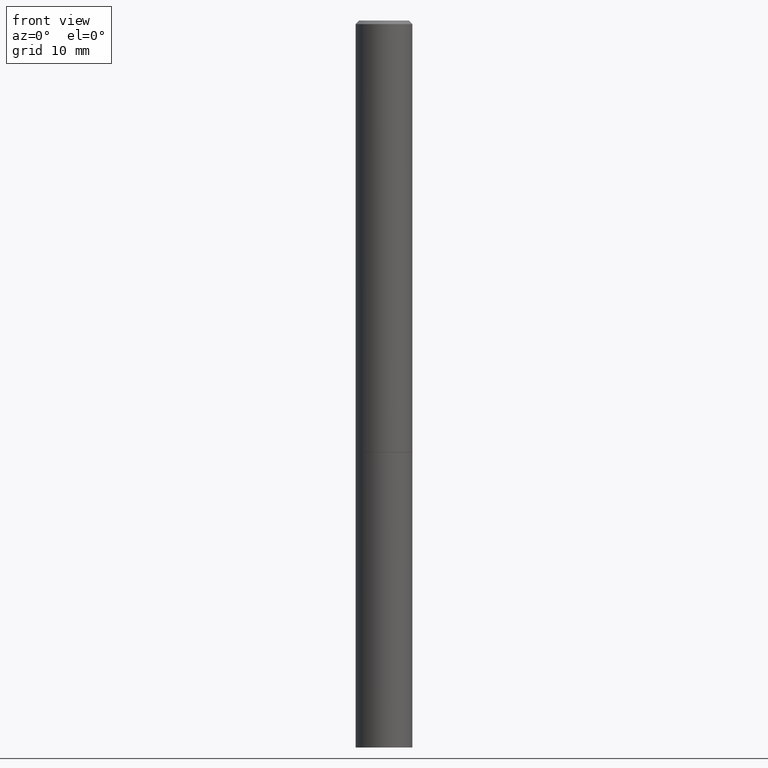
[diagram: clean part render]
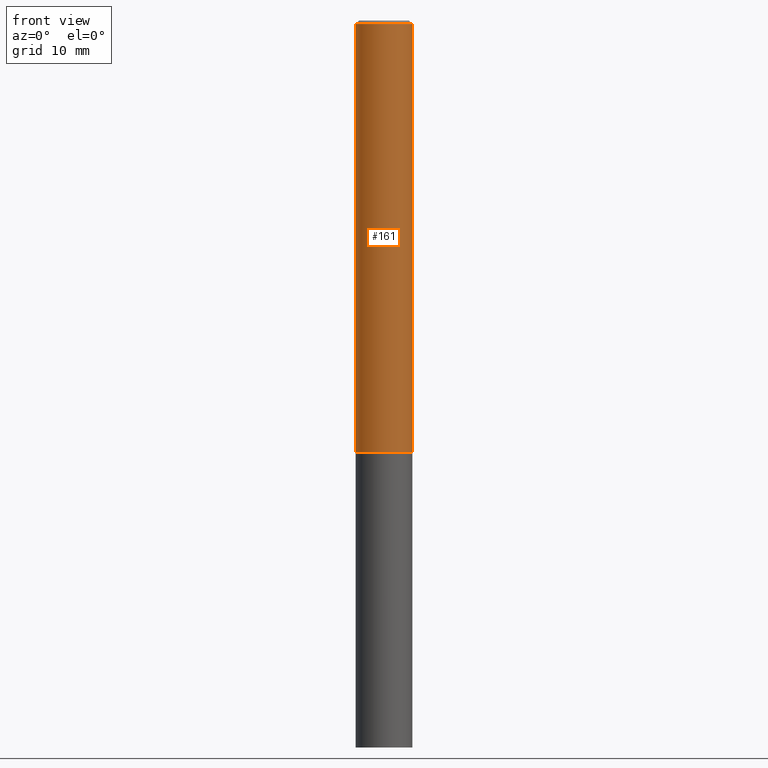
[diagram: same view with one face highlighted and labeled with its STEP entity id]
A machine part, front view. The second image highlights one B-rep face of the part: STEP entity #161.
In plain terms, the highlighted cylindrical surface (edge-blend (fillet) strip) has radius 3.9687 mm, axis along (-0, 0, 1).
Its self-contained STEP definition (entity closure, byte-faithful):
#5 = ORIENTED_EDGE ( 'NONE', *, *, #388, .F. ) ;
#14 = EDGE_CURVE ( 'NONE', #378, #175, #366, .T. ) ;
#44 = CARTESIAN_POINT ( 'NONE',  ( 0.1562500000000000000, -9.379864616802105495E-15, -2.373999999999999666 ) ) ;
#59 = DIRECTION ( 'NONE',  ( -2.445468806185136877E-29, 3.491481338843145188E-15, 1.000000000000000000 ) ) ;
#62 = EDGE_CURVE ( 'NONE', #175, #137, #186, .T. ) ;
#71 = CYLINDRICAL_SURFACE ( 'NONE', #83, 0.1562499999999998612 ) ;
#83 = AXIS2_PLACEMENT_3D ( 'NONE', #327, #325, #291 ) ;
#88 = CARTESIAN_POINT ( 'NONE',  ( 4.890937612370280165E-31, -6.982962677686301470E-17, -0.02000000000000003164 ) ) ;
#90 = VERTEX_POINT ( 'NONE', #346 ) ;
#93 = CARTESIAN_POINT ( 'NONE',  ( 0.1562499999999998612, -1.091087918388478187E-15, 7.619026212181143371E-30 ) ) ;
#102 = VECTOR ( 'NONE', #253, 39.37007874015748143 ) ;
#120 = VECTOR ( 'NONE', #59, 39.37007874015748143 ) ;
#125 = CIRCLE ( 'NONE', #156, 0.1562499999999996947 ) ;
#127 = EDGE_LOOP ( 'NONE', ( #5, #174, #387, #173 ) ) ;
#137 = VERTEX_POINT ( 'NONE', #256 ) ;
#146 = CARTESIAN_POINT ( 'NONE',  ( -0.1562500000000000000, -3.069080137970085114E-15, -2.373999999999999666 ) ) ;
#156 = AXIS2_PLACEMENT_3D ( 'NONE', #88, #305, #210 ) ;
#161 = ADVANCED_FACE ( 'NONE', ( #379 ), #71, .T. ) ;
#173 = ORIENTED_EDGE ( 'NONE', *, *, #296, .F. ) ;
#174 = ORIENTED_EDGE ( 'NONE', *, *, #14, .T. ) ;
#175 = VERTEX_POINT ( 'NONE', #44 ) ;
#186 = LINE ( 'NONE', #93, #102 ) ;
#187 = DIRECTION ( 'NONE',  ( 1.000000000000000000, -6.982962677686262766E-15, 0.000000000000000000 ) ) ;
#210 = DIRECTION ( 'NONE',  ( 1.000000000000000000, -6.982962677686267499E-15, 0.000000000000000000 ) ) ;
#253 = DIRECTION ( 'NONE',  ( -2.445468806185136877E-29, 3.491481338843145188E-15, 1.000000000000000000 ) ) ;
#256 = CARTESIAN_POINT ( 'NONE',  ( 0.1562499999999996947, -1.141782438928662738E-15, -0.02000000000000003164 ) ) ;
#291 = DIRECTION ( 'NONE',  ( 1.000000000000000000, -6.982962677686266711E-15, 4.876176775795936353E-29 ) ) ;
#296 = EDGE_CURVE ( 'NONE', #90, #137, #125, .T. ) ;
#305 = DIRECTION ( 'NONE',  ( -2.445468806185136597E-29, 3.491481338843145583E-15, 1.000000000000000000 ) ) ;
#318 = CARTESIAN_POINT ( 'NONE',  ( 5.805542945883513814E-29, -8.288776698413627111E-15, -2.373999999999999666 ) ) ;
#325 = DIRECTION ( 'NONE',  ( -2.445468806185136597E-29, 3.491481338843145583E-15, 1.000000000000000000 ) ) ;
#327 = CARTESIAN_POINT ( 'NONE',  ( 0.000000000000000000, 0.000000000000000000, 0.000000000000000000 ) ) ;
#335 = LINE ( 'NONE', #337, #120 ) ;
#337 = CARTESIAN_POINT ( 'NONE',  ( -0.1562499999999998612, 1.110223024625155554E-15, -7.685836078523284153E-30 ) ) ;
#346 = CARTESIAN_POINT ( 'NONE',  ( -0.1562499999999996947, 1.021258291611614100E-15, -0.02000000000000003164 ) ) ;
#366 = CIRCLE ( 'NONE', #371, 0.1562500000000000000 ) ;
#371 = AXIS2_PLACEMENT_3D ( 'NONE', #318, #374, #187 ) ;
#374 = DIRECTION ( 'NONE',  ( -2.445468806185136597E-29, 3.491481338843145583E-15, 1.000000000000000000 ) ) ;
#378 = VERTEX_POINT ( 'NONE', #146 ) ;
#379 = FACE_OUTER_BOUND ( 'NONE', #127, .T. ) ;
#387 = ORIENTED_EDGE ( 'NONE', *, *, #62, .T. ) ;
#388 = EDGE_CURVE ( 'NONE', #378, #90, #335, .T. ) ;